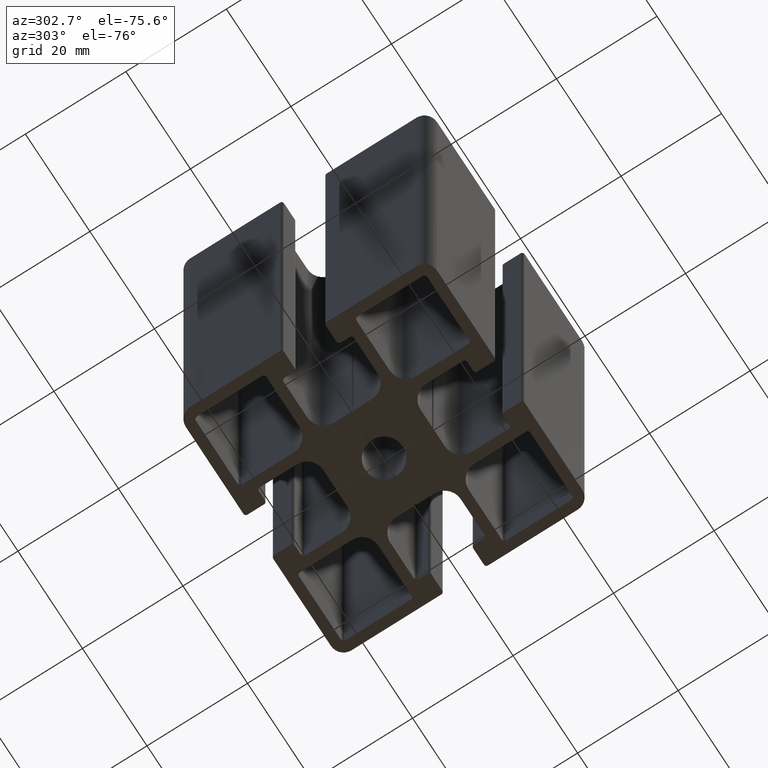
[diagram: clean part render]
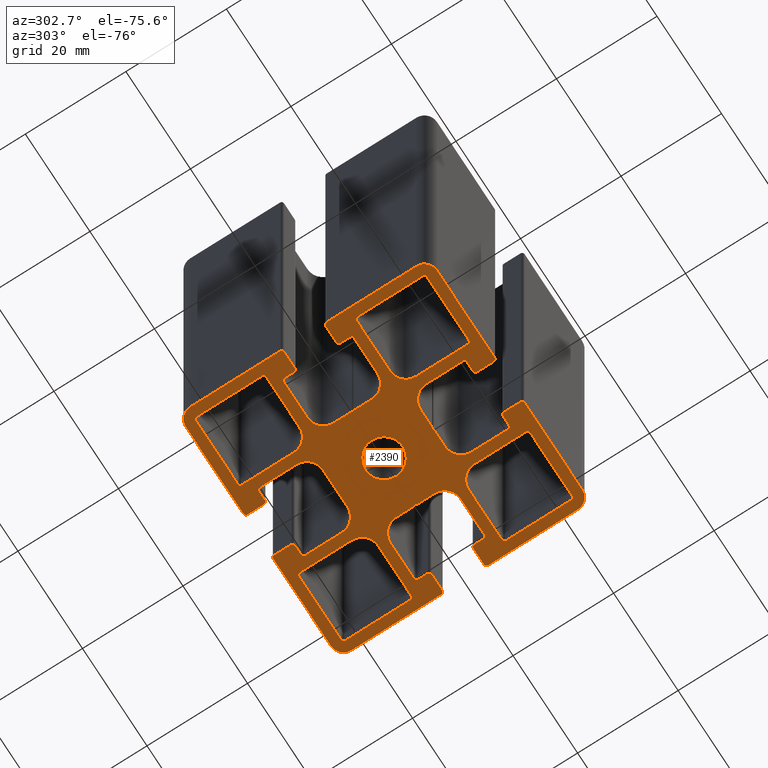
[diagram: same view with one face highlighted and labeled with its STEP entity id]
A machine part, auxiliary view. The second image highlights one B-rep face of the part: STEP entity #2390.
In plain terms, the highlighted planar face has unit normal (0, 0, 1).
Its self-contained STEP definition (entity closure, byte-faithful):
#21=FACE_BOUND('',#336,.T.);
#22=FACE_BOUND('',#337,.T.);
#23=FACE_BOUND('',#338,.T.);
#24=FACE_BOUND('',#339,.T.);
#25=FACE_BOUND('',#340,.T.);
#91=PLANE('',#2617);
#210=FACE_OUTER_BOUND('',#335,.T.);
#335=EDGE_LOOP('',(#2102,#2103,#2104,#2105,#2106,#2107,#2108,#2109,#2110,
#2111,#2112,#2113,#2114,#2115,#2116,#2117,#2118,#2119,#2120,#2121,#2122,
#2123,#2124,#2125,#2126,#2127,#2128,#2129,#2130,#2131,#2132,#2133,#2134,
#2135,#2136,#2137,#2138,#2139,#2140,#2141,#2142,#2143,#2144,#2145,#2146,
#2147,#2148,#2149,#2150,#2151,#2152,#2153,#2154,#2155,#2156,#2157,#2158,
#2159,#2160,#2161,#2162,#2163,#2164,#2165,#2166,#2167,#2168,#2169,#2170,
#2171,#2172,#2173,#2174,#2175,#2176,#2177,#2178,#2179,#2180,#2181,#2182,
#2183,#2184,#2185));
#336=EDGE_LOOP('',(#2186,#2187,#2188,#2189,#2190,#2191,#2192,#2193));
#337=EDGE_LOOP('',(#2194,#2195,#2196,#2197,#2198,#2199,#2200,#2201));
#338=EDGE_LOOP('',(#2202,#2203,#2204,#2205,#2206,#2207,#2208,#2209));
#339=EDGE_LOOP('',(#2210,#2211,#2212,#2213,#2214,#2215,#2216,#2217));
#340=EDGE_LOOP('',(#2218));
#343=LINE('',#3326,#587);
#347=LINE('',#3338,#591);
#351=LINE('',#3350,#595);
#355=LINE('',#3361,#599);
#359=LINE('',#3374,#603);
#363=LINE('',#3386,#607);
#367=LINE('',#3398,#611);
#371=LINE('',#3409,#615);
#375=LINE('',#3422,#619);
#379=LINE('',#3434,#623);
#383=LINE('',#3446,#627);
#387=LINE('',#3457,#631);
#391=LINE('',#3470,#635);
#395=LINE('',#3482,#639);
#399=LINE('',#3494,#643);
#403=LINE('',#3505,#647);
#407=LINE('',#3523,#651);
#411=LINE('',#3535,#655);
#415=LINE('',#3547,#659);
#419=LINE('',#3559,#663);
#422=LINE('',#3565,#666);
#425=LINE('',#3571,#669);
#428=LINE('',#3577,#672);
#432=LINE('',#3589,#676);
#436=LINE('',#3601,#680);
#440=LINE('',#3613,#684);
#444=LINE('',#3625,#688);
#448=LINE('',#3637,#692);
#452=LINE('',#3649,#696);
#456=LINE('',#3661,#700);
#460=LINE('',#3673,#704);
#464=LINE('',#3685,#708);
#467=LINE('',#3691,#711);
#470=LINE('',#3697,#714);
#473=LINE('',#3703,#717);
#477=LINE('',#3715,#721);
#481=LINE('',#3727,#725);
#485=LINE('',#3739,#729);
#489=LINE('',#3751,#733);
#493=LINE('',#3763,#737);
#497=LINE('',#3775,#741);
#501=LINE('',#3787,#745);
#505=LINE('',#3799,#749);
#509=LINE('',#3811,#753);
#512=LINE('',#3817,#756);
#515=LINE('',#3823,#759);
#518=LINE('',#3829,#762);
#522=LINE('',#3841,#766);
#526=LINE('',#3853,#770);
#530=LINE('',#3865,#774);
#534=LINE('',#3877,#778);
#538=LINE('',#3889,#782);
#542=LINE('',#3901,#786);
#546=LINE('',#3913,#790);
#550=LINE('',#3925,#794);
#554=LINE('',#3937,#798);
#557=LINE('',#3943,#801);
#560=LINE('',#3949,#804);
#563=LINE('',#3955,#807);
#567=LINE('',#3967,#811);
#571=LINE('',#3979,#815);
#575=LINE('',#3991,#819);
#579=LINE('',#4003,#823);
#583=LINE('',#4014,#827);
#587=VECTOR('',#2630,10.3);
#591=VECTOR('',#2642,10.3);
#595=VECTOR('',#2654,13.);
#599=VECTOR('',#2666,13.);
#603=VECTOR('',#2678,10.2999999999998);
#607=VECTOR('',#2690,10.3);
#611=VECTOR('',#2702,13.);
#615=VECTOR('',#2714,13.);
#619=VECTOR('',#2726,10.3);
#623=VECTOR('',#2738,12.9999999999999);
#627=VECTOR('',#2750,13.);
#631=VECTOR('',#2762,10.3);
#635=VECTOR('',#2774,10.3);
#639=VECTOR('',#2786,10.3);
#643=VECTOR('',#2798,13.);
#647=VECTOR('',#2810,12.9999999999999);
#651=VECTOR('',#2828,3.30000000000013);
#655=VECTOR('',#2840,1.84999999999998);
#659=VECTOR('',#2852,7.30000000000011);
#663=VECTOR('',#2864,3.60000000000003);
#666=VECTOR('',#2869,0.28284271247467);
#669=VECTOR('',#2874,0.282842712474657);
#672=VECTOR('',#2879,3.60000000000007);
#676=VECTOR('',#2891,7.30000000000018);
#680=VECTOR('',#2903,1.85000000000002);
#684=VECTOR('',#2915,3.30000000000006);
#688=VECTOR('',#2927,17.8500000000001);
#692=VECTOR('',#2939,17.8500000000002);
#696=VECTOR('',#2951,3.29999999999997);
#700=VECTOR('',#2963,1.85000000000002);
#704=VECTOR('',#2975,7.30000000000004);
#708=VECTOR('',#2987,3.60000000000194);
#711=VECTOR('',#2992,0.282842712474644);
#714=VECTOR('',#2997,0.282842712474538);
#717=VECTOR('',#3002,3.60000000000113);
#721=VECTOR('',#3014,7.30000000000004);
#725=VECTOR('',#3026,1.85000000000002);
#729=VECTOR('',#3038,3.29999999999997);
#733=VECTOR('',#3050,17.8500000000001);
#737=VECTOR('',#3062,17.8500000000001);
#741=VECTOR('',#3074,3.30000000000002);
#745=VECTOR('',#3086,1.85000000000002);
#749=VECTOR('',#3098,7.30000000000008);
#753=VECTOR('',#3110,3.60000000000142);
#756=VECTOR('',#3115,0.282842712474563);
#759=VECTOR('',#3120,0.282842712474663);
#762=VECTOR('',#3125,3.59999999999869);
#766=VECTOR('',#3137,7.30000000000008);
#770=VECTOR('',#3149,1.84999999999998);
#774=VECTOR('',#3161,3.30000000000009);
#778=VECTOR('',#3173,17.85);
#782=VECTOR('',#3185,17.8500000000001);
#786=VECTOR('',#3197,3.29999999999997);
#790=VECTOR('',#3209,1.85000000000002);
#794=VECTOR('',#3221,7.30000000000004);
#798=VECTOR('',#3233,3.60000000000334);
#801=VECTOR('',#3238,0.282842712473376);
#804=VECTOR('',#3243,0.282842712474619);
#807=VECTOR('',#3248,3.60000000000156);
#811=VECTOR('',#3260,7.30000000000004);
#815=VECTOR('',#3272,1.85000000000002);
#819=VECTOR('',#3284,3.29999999999997);
#823=VECTOR('',#3296,17.8500000000002);
#827=VECTOR('',#3308,17.85);
#829=CIRCLE('',#2394,0.499999999999972);
#831=CIRCLE('',#2398,3.20000000000007);
#833=CIRCLE('',#2402,0.499999999999972);
#835=CIRCLE('',#2406,0.500000000000043);
#837=CIRCLE('',#2410,0.500000000000007);
#839=CIRCLE('',#2414,3.20000000000004);
#841=CIRCLE('',#2418,0.500000000000007);
#843=CIRCLE('',#2422,0.500000000000043);
#845=CIRCLE('',#2426,3.20000000000004);
#847=CIRCLE('',#2430,0.500000000000007);
#849=CIRCLE('',#2434,0.500000000000043);
#851=CIRCLE('',#2438,0.499999999999972);
#853=CIRCLE('',#2442,0.500000000000043);
#855=CIRCLE('',#2446,3.20000000000007);
#857=CIRCLE('',#2450,0.499999999999972);
#859=CIRCLE('',#2454,0.499999999999972);
#862=CIRCLE('',#2459,3.735);
#863=CIRCLE('',#2461,0.500000000000043);
#865=CIRCLE('',#2465,0.499999999999901);
#867=CIRCLE('',#2469,0.499999999999972);
#869=CIRCLE('',#2473,3.2);
#871=CIRCLE('',#2480,3.19999999999997);
#873=CIRCLE('',#2484,0.499999999999972);
#875=CIRCLE('',#2488,0.499999999999972);
#877=CIRCLE('',#2492,0.500000000000043);
#879=CIRCLE('',#2496,2.49999999999993);
#881=CIRCLE('',#2500,0.499999999999972);
#883=CIRCLE('',#2504,0.499999999999936);
#885=CIRCLE('',#2508,0.499999999999972);
#887=CIRCLE('',#2512,3.20000000000004);
#889=CIRCLE('',#2519,3.20000000000004);
#891=CIRCLE('',#2523,0.499999999999936);
#893=CIRCLE('',#2527,0.499999999999972);
#895=CIRCLE('',#2531,0.499999999999972);
#897=CIRCLE('',#2535,2.49999999999996);
#899=CIRCLE('',#2539,0.500000000000007);
#901=CIRCLE('',#2543,0.499999999999936);
#903=CIRCLE('',#2547,0.499999999999972);
#905=CIRCLE('',#2551,3.1999999999999);
#907=CIRCLE('',#2558,3.19999999999997);
#909=CIRCLE('',#2562,0.499999999999972);
#911=CIRCLE('',#2566,0.499999999999901);
#913=CIRCLE('',#2570,0.500000000000043);
#915=CIRCLE('',#2574,2.49999999999996);
#917=CIRCLE('',#2578,0.499999999999972);
#919=CIRCLE('',#2582,0.499999999999954);
#921=CIRCLE('',#2586,0.499999999999972);
#923=CIRCLE('',#2590,3.19999999999999);
#925=CIRCLE('',#2597,3.19999999999997);
#927=CIRCLE('',#2601,0.499999999999989);
#929=CIRCLE('',#2605,0.499999999999972);
#931=CIRCLE('',#2609,0.499999999999972);
#933=CIRCLE('',#2613,2.49999999999993);
#935=VERTEX_POINT('',#3316);
#936=VERTEX_POINT('',#3317);
#939=VERTEX_POINT('',#3325);
#941=VERTEX_POINT('',#3331);
#943=VERTEX_POINT('',#3337);
#945=VERTEX_POINT('',#3343);
#947=VERTEX_POINT('',#3349);
#949=VERTEX_POINT('',#3355);
#951=VERTEX_POINT('',#3364);
#952=VERTEX_POINT('',#3365);
#955=VERTEX_POINT('',#3373);
#957=VERTEX_POINT('',#3379);
#959=VERTEX_POINT('',#3385);
#961=VERTEX_POINT('',#3391);
#963=VERTEX_POINT('',#3397);
#965=VERTEX_POINT('',#3403);
#967=VERTEX_POINT('',#3412);
#968=VERTEX_POINT('',#3413);
#971=VERTEX_POINT('',#3421);
#973=VERTEX_POINT('',#3427);
#975=VERTEX_POINT('',#3433);
#977=VERTEX_POINT('',#3439);
#979=VERTEX_POINT('',#3445);
#981=VERTEX_POINT('',#3451);
#983=VERTEX_POINT('',#3460);
#984=VERTEX_POINT('',#3461);
#987=VERTEX_POINT('',#3469);
#989=VERTEX_POINT('',#3475);
#991=VERTEX_POINT('',#3481);
#993=VERTEX_POINT('',#3487);
#995=VERTEX_POINT('',#3493);
#997=VERTEX_POINT('',#3499);
#1000=VERTEX_POINT('',#3510);
#1001=VERTEX_POINT('',#3513);
#1002=VERTEX_POINT('',#3514);
#1005=VERTEX_POINT('',#3522);
#1007=VERTEX_POINT('',#3528);
#1009=VERTEX_POINT('',#3534);
#1011=VERTEX_POINT('',#3540);
#1013=VERTEX_POINT('',#3546);
#1015=VERTEX_POINT('',#3552);
#1017=VERTEX_POINT('',#3558);
#1019=VERTEX_POINT('',#3564);
#1021=VERTEX_POINT('',#3570);
#1023=VERTEX_POINT('',#3576);
#1025=VERTEX_POINT('',#3582);
#1027=VERTEX_POINT('',#3588);
#1029=VERTEX_POINT('',#3594);
#1031=VERTEX_POINT('',#3600);
#1033=VERTEX_POINT('',#3606);
#1035=VERTEX_POINT('',#3612);
#1037=VERTEX_POINT('',#3618);
#1039=VERTEX_POINT('',#3624);
#1041=VERTEX_POINT('',#3630);
#1043=VERTEX_POINT('',#3636);
#1045=VERTEX_POINT('',#3642);
#1047=VERTEX_POINT('',#3648);
#1049=VERTEX_POINT('',#3654);
#1051=VERTEX_POINT('',#3660);
#1053=VERTEX_POINT('',#3666);
#1055=VERTEX_POINT('',#3672);
#1057=VERTEX_POINT('',#3678);
#1059=VERTEX_POINT('',#3684);
#1061=VERTEX_POINT('',#3690);
#1063=VERTEX_POINT('',#3696);
#1065=VERTEX_POINT('',#3702);
#1067=VERTEX_POINT('',#3708);
#1069=VERTEX_POINT('',#3714);
#1071=VERTEX_POINT('',#3720);
#1073=VERTEX_POINT('',#3726);
#1075=VERTEX_POINT('',#3732);
#1077=VERTEX_POINT('',#3738);
#1079=VERTEX_POINT('',#3744);
#1081=VERTEX_POINT('',#3750);
#1083=VERTEX_POINT('',#3756);
#1085=VERTEX_POINT('',#3762);
#1087=VERTEX_POINT('',#3768);
#1089=VERTEX_POINT('',#3774);
#1091=VERTEX_POINT('',#3780);
#1093=VERTEX_POINT('',#3786);
#1095=VERTEX_POINT('',#3792);
#1097=VERTEX_POINT('',#3798);
#1099=VERTEX_POINT('',#3804);
#1101=VERTEX_POINT('',#3810);
#1103=VERTEX_POINT('',#3816);
#1105=VERTEX_POINT('',#3822);
#1107=VERTEX_POINT('',#3828);
#1109=VERTEX_POINT('',#3834);
#1111=VERTEX_POINT('',#3840);
#1113=VERTEX_POINT('',#3846);
#1115=VERTEX_POINT('',#3852);
#1117=VERTEX_POINT('',#3858);
#1119=VERTEX_POINT('',#3864);
#1121=VERTEX_POINT('',#3870);
#1123=VERTEX_POINT('',#3876);
#1125=VERTEX_POINT('',#3882);
#1127=VERTEX_POINT('',#3888);
#1129=VERTEX_POINT('',#3894);
#1131=VERTEX_POINT('',#3900);
#1133=VERTEX_POINT('',#3906);
#1135=VERTEX_POINT('',#3912);
#1137=VERTEX_POINT('',#3918);
#1139=VERTEX_POINT('',#3924);
#1141=VERTEX_POINT('',#3930);
#1143=VERTEX_POINT('',#3936);
#1145=VERTEX_POINT('',#3942);
#1147=VERTEX_POINT('',#3948);
#1149=VERTEX_POINT('',#3954);
#1151=VERTEX_POINT('',#3960);
#1153=VERTEX_POINT('',#3966);
#1155=VERTEX_POINT('',#3972);
#1157=VERTEX_POINT('',#3978);
#1159=VERTEX_POINT('',#3984);
#1161=VERTEX_POINT('',#3990);
#1163=VERTEX_POINT('',#3996);
#1165=VERTEX_POINT('',#4002);
#1167=VERTEX_POINT('',#4008);
#1169=EDGE_CURVE('',#935,#936,#829,.T.);
#1173=EDGE_CURVE('',#939,#935,#343,.T.);
#1176=EDGE_CURVE('',#941,#939,#831,.T.);
#1179=EDGE_CURVE('',#943,#941,#347,.T.);
#1182=EDGE_CURVE('',#945,#943,#833,.T.);
#1185=EDGE_CURVE('',#947,#945,#351,.T.);
#1188=EDGE_CURVE('',#949,#947,#835,.T.);
#1191=EDGE_CURVE('',#936,#949,#355,.T.);
#1193=EDGE_CURVE('',#951,#952,#837,.T.);
#1197=EDGE_CURVE('',#955,#951,#359,.T.);
#1200=EDGE_CURVE('',#957,#955,#839,.T.);
#1203=EDGE_CURVE('',#959,#957,#363,.T.);
#1206=EDGE_CURVE('',#961,#959,#841,.T.);
#1209=EDGE_CURVE('',#963,#961,#367,.T.);
#1212=EDGE_CURVE('',#965,#963,#843,.T.);
#1215=EDGE_CURVE('',#952,#965,#371,.T.);
#1217=EDGE_CURVE('',#967,#968,#845,.T.);
#1221=EDGE_CURVE('',#971,#967,#375,.T.);
#1224=EDGE_CURVE('',#973,#971,#847,.T.);
#1227=EDGE_CURVE('',#975,#973,#379,.T.);
#1230=EDGE_CURVE('',#977,#975,#849,.T.);
#1233=EDGE_CURVE('',#979,#977,#383,.T.);
#1236=EDGE_CURVE('',#981,#979,#851,.T.);
#1239=EDGE_CURVE('',#968,#981,#387,.T.);
#1241=EDGE_CURVE('',#983,#984,#853,.T.);
#1245=EDGE_CURVE('',#987,#983,#391,.T.);
#1248=EDGE_CURVE('',#989,#987,#855,.T.);
#1251=EDGE_CURVE('',#991,#989,#395,.T.);
#1254=EDGE_CURVE('',#993,#991,#857,.T.);
#1257=EDGE_CURVE('',#995,#993,#399,.T.);
#1260=EDGE_CURVE('',#997,#995,#859,.T.);
#1263=EDGE_CURVE('',#984,#997,#403,.T.);
#1266=EDGE_CURVE('',#1000,#1000,#862,.T.);
#1267=EDGE_CURVE('',#1001,#1002,#863,.T.);
#1271=EDGE_CURVE('',#1005,#1001,#407,.T.);
#1274=EDGE_CURVE('',#1007,#1005,#865,.T.);
#1277=EDGE_CURVE('',#1009,#1007,#411,.T.);
#1280=EDGE_CURVE('',#1011,#1009,#867,.T.);
#1283=EDGE_CURVE('',#1013,#1011,#415,.T.);
#1286=EDGE_CURVE('',#1015,#1013,#869,.T.);
#1289=EDGE_CURVE('',#1017,#1015,#419,.T.);
#1292=EDGE_CURVE('',#1019,#1017,#422,.T.);
#1295=EDGE_CURVE('',#1021,#1019,#425,.T.);
#1298=EDGE_CURVE('',#1023,#1021,#428,.T.);
#1301=EDGE_CURVE('',#1025,#1023,#871,.T.);
#1304=EDGE_CURVE('',#1027,#1025,#432,.T.);
#1307=EDGE_CURVE('',#1029,#1027,#873,.T.);
#1310=EDGE_CURVE('',#1031,#1029,#436,.T.);
#1313=EDGE_CURVE('',#1033,#1031,#875,.T.);
#1316=EDGE_CURVE('',#1035,#1033,#440,.T.);
#1319=EDGE_CURVE('',#1037,#1035,#877,.T.);
#1322=EDGE_CURVE('',#1039,#1037,#444,.T.);
#1325=EDGE_CURVE('',#1041,#1039,#879,.T.);
#1328=EDGE_CURVE('',#1043,#1041,#448,.T.);
#1331=EDGE_CURVE('',#1045,#1043,#881,.T.);
#1334=EDGE_CURVE('',#1047,#1045,#452,.T.);
#1337=EDGE_CURVE('',#1049,#1047,#883,.T.);
#1340=EDGE_CURVE('',#1051,#1049,#456,.T.);
#1343=EDGE_CURVE('',#1053,#1051,#885,.T.);
#1346=EDGE_CURVE('',#1055,#1053,#460,.T.);
#1349=EDGE_CURVE('',#1057,#1055,#887,.T.);
#1352=EDGE_CURVE('',#1059,#1057,#464,.T.);
#1355=EDGE_CURVE('',#1061,#1059,#467,.T.);
#1358=EDGE_CURVE('',#1063,#1061,#470,.T.);
#1361=EDGE_CURVE('',#1065,#1063,#473,.T.);
#1364=EDGE_CURVE('',#1067,#1065,#889,.T.);
#1367=EDGE_CURVE('',#1069,#1067,#477,.T.);
#1370=EDGE_CURVE('',#1071,#1069,#891,.T.);
#1373=EDGE_CURVE('',#1073,#1071,#481,.T.);
#1376=EDGE_CURVE('',#1075,#1073,#893,.T.);
#1379=EDGE_CURVE('',#1077,#1075,#485,.T.);
#1382=EDGE_CURVE('',#1079,#1077,#895,.T.);
#1385=EDGE_CURVE('',#1081,#1079,#489,.T.);
#1388=EDGE_CURVE('',#1083,#1081,#897,.T.);
#1391=EDGE_CURVE('',#1085,#1083,#493,.T.);
#1394=EDGE_CURVE('',#1087,#1085,#899,.T.);
#1397=EDGE_CURVE('',#1089,#1087,#497,.T.);
#1400=EDGE_CURVE('',#1091,#1089,#901,.T.);
#1403=EDGE_CURVE('',#1093,#1091,#501,.T.);
#1406=EDGE_CURVE('',#1095,#1093,#903,.T.);
#1409=EDGE_CURVE('',#1097,#1095,#505,.T.);
#1412=EDGE_CURVE('',#1099,#1097,#905,.T.);
#1415=EDGE_CURVE('',#1101,#1099,#509,.T.);
#1418=EDGE_CURVE('',#1103,#1101,#512,.T.);
#1421=EDGE_CURVE('',#1105,#1103,#515,.T.);
#1424=EDGE_CURVE('',#1107,#1105,#518,.T.);
#1427=EDGE_CURVE('',#1109,#1107,#907,.T.);
#1430=EDGE_CURVE('',#1111,#1109,#522,.T.);
#1433=EDGE_CURVE('',#1113,#1111,#909,.T.);
#1436=EDGE_CURVE('',#1115,#1113,#526,.T.);
#1439=EDGE_CURVE('',#1117,#1115,#911,.T.);
#1442=EDGE_CURVE('',#1119,#1117,#530,.T.);
#1445=EDGE_CURVE('',#1121,#1119,#913,.T.);
#1448=EDGE_CURVE('',#1123,#1121,#534,.T.);
#1451=EDGE_CURVE('',#1125,#1123,#915,.T.);
#1454=EDGE_CURVE('',#1127,#1125,#538,.T.);
#1457=EDGE_CURVE('',#1129,#1127,#917,.T.);
#1460=EDGE_CURVE('',#1131,#1129,#542,.T.);
#1463=EDGE_CURVE('',#1133,#1131,#919,.T.);
#1466=EDGE_CURVE('',#1135,#1133,#546,.T.);
#1469=EDGE_CURVE('',#1137,#1135,#921,.T.);
#1472=EDGE_CURVE('',#1139,#1137,#550,.T.);
#1475=EDGE_CURVE('',#1141,#1139,#923,.T.);
#1478=EDGE_CURVE('',#1143,#1141,#554,.T.);
#1481=EDGE_CURVE('',#1145,#1143,#557,.T.);
#1484=EDGE_CURVE('',#1147,#1145,#560,.T.);
#1487=EDGE_CURVE('',#1149,#1147,#563,.T.);
#1490=EDGE_CURVE('',#1151,#1149,#925,.T.);
#1493=EDGE_CURVE('',#1153,#1151,#567,.T.);
#1496=EDGE_CURVE('',#1155,#1153,#927,.T.);
#1499=EDGE_CURVE('',#1157,#1155,#571,.T.);
#1502=EDGE_CURVE('',#1159,#1157,#929,.T.);
#1505=EDGE_CURVE('',#1161,#1159,#575,.T.);
#1508=EDGE_CURVE('',#1163,#1161,#931,.T.);
#1511=EDGE_CURVE('',#1165,#1163,#579,.T.);
#1514=EDGE_CURVE('',#1167,#1165,#933,.T.);
#1517=EDGE_CURVE('',#1002,#1167,#583,.T.);
#2102=ORIENTED_EDGE('',*,*,#1517,.F.);
#2103=ORIENTED_EDGE('',*,*,#1267,.F.);
#2104=ORIENTED_EDGE('',*,*,#1271,.F.);
#2105=ORIENTED_EDGE('',*,*,#1274,.F.);
#2106=ORIENTED_EDGE('',*,*,#1277,.F.);
#2107=ORIENTED_EDGE('',*,*,#1280,.F.);
#2108=ORIENTED_EDGE('',*,*,#1283,.F.);
#2109=ORIENTED_EDGE('',*,*,#1286,.F.);
#2110=ORIENTED_EDGE('',*,*,#1289,.F.);
#2111=ORIENTED_EDGE('',*,*,#1292,.F.);
#2112=ORIENTED_EDGE('',*,*,#1295,.F.);
#2113=ORIENTED_EDGE('',*,*,#1298,.F.);
#2114=ORIENTED_EDGE('',*,*,#1301,.F.);
#2115=ORIENTED_EDGE('',*,*,#1304,.F.);
#2116=ORIENTED_EDGE('',*,*,#1307,.F.);
#2117=ORIENTED_EDGE('',*,*,#1310,.F.);
#2118=ORIENTED_EDGE('',*,*,#1313,.F.);
#2119=ORIENTED_EDGE('',*,*,#1316,.F.);
#2120=ORIENTED_EDGE('',*,*,#1319,.F.);
#2121=ORIENTED_EDGE('',*,*,#1322,.F.);
#2122=ORIENTED_EDGE('',*,*,#1325,.F.);
#2123=ORIENTED_EDGE('',*,*,#1328,.F.);
#2124=ORIENTED_EDGE('',*,*,#1331,.F.);
#2125=ORIENTED_EDGE('',*,*,#1334,.F.);
#2126=ORIENTED_EDGE('',*,*,#1337,.F.);
#2127=ORIENTED_EDGE('',*,*,#1340,.F.);
#2128=ORIENTED_EDGE('',*,*,#1343,.F.);
#2129=ORIENTED_EDGE('',*,*,#1346,.F.);
#2130=ORIENTED_EDGE('',*,*,#1349,.F.);
#2131=ORIENTED_EDGE('',*,*,#1352,.F.);
#2132=ORIENTED_EDGE('',*,*,#1355,.F.);
#2133=ORIENTED_EDGE('',*,*,#1358,.F.);
#2134=ORIENTED_EDGE('',*,*,#1361,.F.);
#2135=ORIENTED_EDGE('',*,*,#1364,.F.);
#2136=ORIENTED_EDGE('',*,*,#1367,.F.);
#2137=ORIENTED_EDGE('',*,*,#1370,.F.);
#2138=ORIENTED_EDGE('',*,*,#1373,.F.);
#2139=ORIENTED_EDGE('',*,*,#1376,.F.);
#2140=ORIENTED_EDGE('',*,*,#1379,.F.);
#2141=ORIENTED_EDGE('',*,*,#1382,.F.);
#2142=ORIENTED_EDGE('',*,*,#1385,.F.);
#2143=ORIENTED_EDGE('',*,*,#1388,.F.);
#2144=ORIENTED_EDGE('',*,*,#1391,.F.);
#2145=ORIENTED_EDGE('',*,*,#1394,.F.);
#2146=ORIENTED_EDGE('',*,*,#1397,.F.);
#2147=ORIENTED_EDGE('',*,*,#1400,.F.);
#2148=ORIENTED_EDGE('',*,*,#1403,.F.);
#2149=ORIENTED_EDGE('',*,*,#1406,.F.);
#2150=ORIENTED_EDGE('',*,*,#1409,.F.);
#2151=ORIENTED_EDGE('',*,*,#1412,.F.);
#2152=ORIENTED_EDGE('',*,*,#1415,.F.);
#2153=ORIENTED_EDGE('',*,*,#1418,.F.);
#2154=ORIENTED_EDGE('',*,*,#1421,.F.);
#2155=ORIENTED_EDGE('',*,*,#1424,.F.);
#2156=ORIENTED_EDGE('',*,*,#1427,.F.);
#2157=ORIENTED_EDGE('',*,*,#1430,.F.);
#2158=ORIENTED_EDGE('',*,*,#1433,.F.);
#2159=ORIENTED_EDGE('',*,*,#1436,.F.);
#2160=ORIENTED_EDGE('',*,*,#1439,.F.);
#2161=ORIENTED_EDGE('',*,*,#1442,.F.);
#2162=ORIENTED_EDGE('',*,*,#1445,.F.);
#2163=ORIENTED_EDGE('',*,*,#1448,.F.);
#2164=ORIENTED_EDGE('',*,*,#1451,.F.);
#2165=ORIENTED_EDGE('',*,*,#1454,.F.);
#2166=ORIENTED_EDGE('',*,*,#1457,.F.);
#2167=ORIENTED_EDGE('',*,*,#1460,.F.);
#2168=ORIENTED_EDGE('',*,*,#1463,.F.);
#2169=ORIENTED_EDGE('',*,*,#1466,.F.);
#2170=ORIENTED_EDGE('',*,*,#1469,.F.);
#2171=ORIENTED_EDGE('',*,*,#1472,.F.);
#2172=ORIENTED_EDGE('',*,*,#1475,.F.);
#2173=ORIENTED_EDGE('',*,*,#1478,.F.);
#2174=ORIENTED_EDGE('',*,*,#1481,.F.);
#2175=ORIENTED_EDGE('',*,*,#1484,.F.);
#2176=ORIENTED_EDGE('',*,*,#1487,.F.);
#2177=ORIENTED_EDGE('',*,*,#1490,.F.);
#2178=ORIENTED_EDGE('',*,*,#1493,.F.);
#2179=ORIENTED_EDGE('',*,*,#1496,.F.);
#2180=ORIENTED_EDGE('',*,*,#1499,.F.);
#2181=ORIENTED_EDGE('',*,*,#1502,.F.);
#2182=ORIENTED_EDGE('',*,*,#1505,.F.);
#2183=ORIENTED_EDGE('',*,*,#1508,.F.);
#2184=ORIENTED_EDGE('',*,*,#1511,.F.);
#2185=ORIENTED_EDGE('',*,*,#1514,.F.);
#2186=ORIENTED_EDGE('',*,*,#1169,.T.);
#2187=ORIENTED_EDGE('',*,*,#1191,.T.);
#2188=ORIENTED_EDGE('',*,*,#1188,.T.);
#2189=ORIENTED_EDGE('',*,*,#1185,.T.);
#2190=ORIENTED_EDGE('',*,*,#1182,.T.);
#2191=ORIENTED_EDGE('',*,*,#1179,.T.);
#2192=ORIENTED_EDGE('',*,*,#1176,.T.);
#2193=ORIENTED_EDGE('',*,*,#1173,.T.);
#2194=ORIENTED_EDGE('',*,*,#1193,.T.);
#2195=ORIENTED_EDGE('',*,*,#1215,.T.);
#2196=ORIENTED_EDGE('',*,*,#1212,.T.);
#2197=ORIENTED_EDGE('',*,*,#1209,.T.);
#2198=ORIENTED_EDGE('',*,*,#1206,.T.);
#2199=ORIENTED_EDGE('',*,*,#1203,.T.);
#2200=ORIENTED_EDGE('',*,*,#1200,.T.);
#2201=ORIENTED_EDGE('',*,*,#1197,.T.);
#2202=ORIENTED_EDGE('',*,*,#1217,.T.);
#2203=ORIENTED_EDGE('',*,*,#1239,.T.);
#2204=ORIENTED_EDGE('',*,*,#1236,.T.);
#2205=ORIENTED_EDGE('',*,*,#1233,.T.);
#2206=ORIENTED_EDGE('',*,*,#1230,.T.);
#2207=ORIENTED_EDGE('',*,*,#1227,.T.);
#2208=ORIENTED_EDGE('',*,*,#1224,.T.);
#2209=ORIENTED_EDGE('',*,*,#1221,.T.);
#2210=ORIENTED_EDGE('',*,*,#1241,.T.);
#2211=ORIENTED_EDGE('',*,*,#1263,.T.);
#2212=ORIENTED_EDGE('',*,*,#1260,.T.);
#2213=ORIENTED_EDGE('',*,*,#1257,.T.);
#2214=ORIENTED_EDGE('',*,*,#1254,.T.);
#2215=ORIENTED_EDGE('',*,*,#1251,.T.);
#2216=ORIENTED_EDGE('',*,*,#1248,.T.);
#2217=ORIENTED_EDGE('',*,*,#1245,.T.);
#2218=ORIENTED_EDGE('',*,*,#1266,.T.);
#2390=ADVANCED_FACE('',(#210,#21,#22,#23,#24,#25),#91,.F.);
#2394=AXIS2_PLACEMENT_3D('',#3318,#2622,#2623);
#2398=AXIS2_PLACEMENT_3D('',#3332,#2635,#2636);
#2402=AXIS2_PLACEMENT_3D('',#3344,#2647,#2648);
#2406=AXIS2_PLACEMENT_3D('',#3356,#2659,#2660);
#2410=AXIS2_PLACEMENT_3D('',#3366,#2670,#2671);
#2414=AXIS2_PLACEMENT_3D('',#3380,#2683,#2684);
#2418=AXIS2_PLACEMENT_3D('',#3392,#2695,#2696);
#2422=AXIS2_PLACEMENT_3D('',#3404,#2707,#2708);
#2426=AXIS2_PLACEMENT_3D('',#3414,#2718,#2719);
#2430=AXIS2_PLACEMENT_3D('',#3428,#2731,#2732);
#2434=AXIS2_PLACEMENT_3D('',#3440,#2743,#2744);
#2438=AXIS2_PLACEMENT_3D('',#3452,#2755,#2756);
#2442=AXIS2_PLACEMENT_3D('',#3462,#2766,#2767);
#2446=AXIS2_PLACEMENT_3D('',#3476,#2779,#2780);
#2450=AXIS2_PLACEMENT_3D('',#3488,#2791,#2792);
#2454=AXIS2_PLACEMENT_3D('',#3500,#2803,#2804);
#2459=AXIS2_PLACEMENT_3D('',#3511,#2816,#2817);
#2461=AXIS2_PLACEMENT_3D('',#3515,#2820,#2821);
#2465=AXIS2_PLACEMENT_3D('',#3529,#2833,#2834);
#2469=AXIS2_PLACEMENT_3D('',#3541,#2845,#2846);
#2473=AXIS2_PLACEMENT_3D('',#3553,#2857,#2858);
#2480=AXIS2_PLACEMENT_3D('',#3583,#2884,#2885);
#2484=AXIS2_PLACEMENT_3D('',#3595,#2896,#2897);
#2488=AXIS2_PLACEMENT_3D('',#3607,#2908,#2909);
#2492=AXIS2_PLACEMENT_3D('',#3619,#2920,#2921);
#2496=AXIS2_PLACEMENT_3D('',#3631,#2932,#2933);
#2500=AXIS2_PLACEMENT_3D('',#3643,#2944,#2945);
#2504=AXIS2_PLACEMENT_3D('',#3655,#2956,#2957);
#2508=AXIS2_PLACEMENT_3D('',#3667,#2968,#2969);
#2512=AXIS2_PLACEMENT_3D('',#3679,#2980,#2981);
#2519=AXIS2_PLACEMENT_3D('',#3709,#3007,#3008);
#2523=AXIS2_PLACEMENT_3D('',#3721,#3019,#3020);
#2527=AXIS2_PLACEMENT_3D('',#3733,#3031,#3032);
#2531=AXIS2_PLACEMENT_3D('',#3745,#3043,#3044);
#2535=AXIS2_PLACEMENT_3D('',#3757,#3055,#3056);
#2539=AXIS2_PLACEMENT_3D('',#3769,#3067,#3068);
#2543=AXIS2_PLACEMENT_3D('',#3781,#3079,#3080);
#2547=AXIS2_PLACEMENT_3D('',#3793,#3091,#3092);
#2551=AXIS2_PLACEMENT_3D('',#3805,#3103,#3104);
#2558=AXIS2_PLACEMENT_3D('',#3835,#3130,#3131);
#2562=AXIS2_PLACEMENT_3D('',#3847,#3142,#3143);
#2566=AXIS2_PLACEMENT_3D('',#3859,#3154,#3155);
#2570=AXIS2_PLACEMENT_3D('',#3871,#3166,#3167);
#2574=AXIS2_PLACEMENT_3D('',#3883,#3178,#3179);
#2578=AXIS2_PLACEMENT_3D('',#3895,#3190,#3191);
#2582=AXIS2_PLACEMENT_3D('',#3907,#3202,#3203);
#2586=AXIS2_PLACEMENT_3D('',#3919,#3214,#3215);
#2590=AXIS2_PLACEMENT_3D('',#3931,#3226,#3227);
#2597=AXIS2_PLACEMENT_3D('',#3961,#3253,#3254);
#2601=AXIS2_PLACEMENT_3D('',#3973,#3265,#3266);
#2605=AXIS2_PLACEMENT_3D('',#3985,#3277,#3278);
#2609=AXIS2_PLACEMENT_3D('',#3997,#3289,#3290);
#2613=AXIS2_PLACEMENT_3D('',#4009,#3301,#3302);
#2617=AXIS2_PLACEMENT_3D('',#4017,#3312,#3313);
#2622=DIRECTION('center_axis',(0.,0.,1.));
#2623=DIRECTION('ref_axis',(7.10542735760128E-14,1.,0.));
#2630=DIRECTION('',(1.,-4.31154572669963E-14,0.));
#2635=DIRECTION('center_axis',(0.,0.,1.));
#2636=DIRECTION('ref_axis',(1.,-4.44089209850057E-14,0.));
#2642=DIRECTION('',(-4.05285298309766E-14,-1.,0.));
#2647=DIRECTION('center_axis',(0.,0.,1.));
#2648=DIRECTION('ref_axis',(-7.10542735760128E-14,-1.,0.));
#2654=DIRECTION('',(-1.,4.91914201680069E-14,0.));
#2659=DIRECTION('center_axis',(0.,0.,1.));
#2660=DIRECTION('ref_axis',(-1.,-7.10542735760141E-14,0.));
#2666=DIRECTION('',(4.03096359710056E-14,1.,0.));
#2670=DIRECTION('center_axis',(0.,0.,1.));
#2671=DIRECTION('ref_axis',(1.,0.,0.));
#2678=DIRECTION('',(-9.48540059873942E-14,-1.,0.));
#2683=DIRECTION('center_axis',(0.,0.,1.));
#2684=DIRECTION('ref_axis',(-7.771561172376E-14,-1.,0.));
#2690=DIRECTION('',(-1.,9.31293876967119E-14,0.));
#2695=DIRECTION('center_axis',(0.,0.,1.));
#2696=DIRECTION('ref_axis',(-1.,1.42108547152028E-13,0.));
#2702=DIRECTION('',(9.2917126984013E-14,1.,0.));
#2707=DIRECTION('center_axis',(0.,0.,1.));
#2708=DIRECTION('ref_axis',(-7.1054273576004E-14,1.,0.));
#2714=DIRECTION('',(1.,-9.15506986460128E-14,0.));
#2718=DIRECTION('center_axis',(0.,0.,1.));
#2719=DIRECTION('ref_axis',(0.,1.,0.));
#2726=DIRECTION('',(1.,-2.58692743601979E-15,0.));
#2731=DIRECTION('center_axis',(0.,0.,1.));
#2732=DIRECTION('ref_axis',(1.,0.,0.));
#2738=DIRECTION('',(-1.3664283380002E-15,-1.,0.));
#2743=DIRECTION('center_axis',(0.,0.,1.));
#2744=DIRECTION('ref_axis',(1.42108547152008E-13,-1.,0.));
#2750=DIRECTION('',(-1.,-3.41607084500048E-15,0.));
#2755=DIRECTION('center_axis',(0.,0.,1.));
#2756=DIRECTION('ref_axis',(-1.,1.42108547152028E-13,0.));
#2762=DIRECTION('',(3.44923658135971E-15,1.,0.));
#2766=DIRECTION('center_axis',(0.,0.,1.));
#2767=DIRECTION('ref_axis',(-5.3290705182002E-14,-1.,0.));
#2774=DIRECTION('',(-1.,1.35382535818369E-13,0.));
#2779=DIRECTION('center_axis',(0.,0.,1.));
#2780=DIRECTION('ref_axis',(-1.,1.11022302462513E-13,0.));
#2786=DIRECTION('',(1.34520226673028E-13,1.,0.));
#2791=DIRECTION('center_axis',(0.,0.,1.));
#2792=DIRECTION('ref_axis',(1.42108547152038E-13,1.,0.));
#2798=DIRECTION('',(1.,-1.36642833800019E-13,0.));
#2803=DIRECTION('center_axis',(0.,0.,1.));
#2804=DIRECTION('ref_axis',(1.,-2.13162820728054E-13,0.));
#2810=DIRECTION('',(-1.3390997712402E-13,-1.,0.));
#2816=DIRECTION('center_axis',(0.,0.,1.));
#2817=DIRECTION('ref_axis',(-1.,0.,0.));
#2820=DIRECTION('center_axis',(0.,0.,1.));
#2821=DIRECTION('ref_axis',(1.,0.,0.));
#2828=DIRECTION('',(2.69144975666694E-15,1.,0.));
#2833=DIRECTION('center_axis',(0.,0.,1.));
#2834=DIRECTION('ref_axis',(-2.30926389122079E-13,-1.,0.));
#2840=DIRECTION('',(1.,-3.84077154464924E-14,0.));
#2845=DIRECTION('center_axis',(0.,0.,-1.));
#2846=DIRECTION('ref_axis',(-7.10542735760141E-14,-1.,0.));
#2852=DIRECTION('',(0.,1.,0.));
#2857=DIRECTION('center_axis',(0.,0.,-1.));
#2858=DIRECTION('ref_axis',(1.,0.,0.));
#2864=DIRECTION('',(-1.,-1.72701359386134E-14,0.));
#2869=DIRECTION('',(-0.707106781186563,0.707106781186532,0.));
#2874=DIRECTION('',(-0.707106781186532,-0.707106781186563,0.));
#2879=DIRECTION('',(-1.,1.97372982155579E-14,0.));
#2884=DIRECTION('center_axis',(0.,0.,-1.));
#2885=DIRECTION('ref_axis',(0.,1.,0.));
#2891=DIRECTION('',(-4.86673106684988E-15,-1.,0.));
#2896=DIRECTION('center_axis',(0.,0.,-1.));
#2897=DIRECTION('ref_axis',(-1.,0.,0.));
#2903=DIRECTION('',(1.,3.84077154464914E-14,0.));
#2908=DIRECTION('center_axis',(0.,0.,1.));
#2909=DIRECTION('ref_axis',(-1.,0.,0.));
#2915=DIRECTION('',(2.69144975666699E-15,-1.,0.));
#2920=DIRECTION('center_axis',(0.,0.,1.));
#2921=DIRECTION('ref_axis',(-7.1054273576004E-14,1.,0.));
#2927=DIRECTION('',(-1.,0.,0.));
#2932=DIRECTION('center_axis',(0.,0.,1.));
#2933=DIRECTION('ref_axis',(1.,0.,0.));
#2939=DIRECTION('',(5.97094735932852E-15,1.,0.));
#2944=DIRECTION('center_axis',(0.,0.,1.));
#2945=DIRECTION('ref_axis',(0.,-1.,0.));
#2951=DIRECTION('',(1.,-1.34572487833354E-14,0.));
#2956=DIRECTION('center_axis',(0.,0.,1.));
#2957=DIRECTION('ref_axis',(-1.,-1.77635683940048E-14,0.));
#2963=DIRECTION('',(1.92038577232457E-14,-1.,0.));
#2968=DIRECTION('center_axis',(0.,0.,-1.));
#2969=DIRECTION('ref_axis',(-1.,0.,0.));
#2975=DIRECTION('',(1.,-1.46001932005499E-14,0.));
#2980=DIRECTION('center_axis',(0.,0.,-1.));
#2981=DIRECTION('ref_axis',(0.,-1.,0.));
#2987=DIRECTION('',(1.2829243840106E-13,1.,0.));
#2992=DIRECTION('',(0.707106781186595,0.7071067811865,0.));
#2997=DIRECTION('',(-0.707106781186485,0.70710678118661,0.));
#3002=DIRECTION('',(-1.57898385724417E-13,1.,0.));
#3007=DIRECTION('center_axis',(0.,0.,-1.));
#3008=DIRECTION('ref_axis',(1.,1.38777878078143E-14,0.));
#3014=DIRECTION('',(-1.,1.09501449004125E-14,0.));
#3019=DIRECTION('center_axis',(0.,0.,-1.));
#3020=DIRECTION('ref_axis',(7.10542735759939E-14,1.,0.));
#3026=DIRECTION('',(0.,-1.,0.));
#3031=DIRECTION('center_axis',(0.,0.,1.));
#3032=DIRECTION('ref_axis',(7.10542735760077E-14,1.,0.));
#3038=DIRECTION('',(-1.,1.34572487833354E-14,0.));
#3043=DIRECTION('center_axis',(0.,0.,1.));
#3044=DIRECTION('ref_axis',(1.,0.,0.));
#3050=DIRECTION('',(-7.96126314577137E-15,1.,0.));
#3055=DIRECTION('center_axis',(0.,0.,1.));
#3056=DIRECTION('ref_axis',(-1.4210854715202E-14,-1.,0.));
#3062=DIRECTION('',(1.,0.,0.));
#3067=DIRECTION('center_axis',(0.,0.,1.));
#3068=DIRECTION('ref_axis',(-1.,0.,0.));
#3074=DIRECTION('',(1.88401482966692E-14,-1.,0.));
#3079=DIRECTION('center_axis',(0.,0.,1.));
#3080=DIRECTION('ref_axis',(0.,1.,0.));
#3086=DIRECTION('',(-1.,0.,0.));
#3091=DIRECTION('center_axis',(0.,0.,-1.));
#3092=DIRECTION('ref_axis',(7.10542735760141E-14,1.,0.));
#3098=DIRECTION('',(4.86673106684995E-15,-1.,0.));
#3103=DIRECTION('center_axis',(0.,0.,-1.));
#3104=DIRECTION('ref_axis',(-1.,3.33066907387558E-14,0.));
#3110=DIRECTION('',(1.,-1.18423789293303E-13,0.));
#3115=DIRECTION('',(0.707106781186548,-0.707106781186548,0.));
#3120=DIRECTION('',(0.707106781186799,0.707106781186296,0.));
#3125=DIRECTION('',(1.,1.18423789293393E-13,0.));
#3130=DIRECTION('center_axis',(0.,0.,-1.));
#3131=DIRECTION('ref_axis',(-8.32667268468857E-15,-1.,0.));
#3137=DIRECTION('',(-3.65004830013746E-15,1.,0.));
#3142=DIRECTION('center_axis',(0.,0.,-1.));
#3143=DIRECTION('ref_axis',(1.,-7.10542735760191E-14,0.));
#3149=DIRECTION('',(-1.,0.,0.));
#3154=DIRECTION('center_axis',(0.,0.,1.));
#3155=DIRECTION('ref_axis',(1.,0.,0.));
#3161=DIRECTION('',(-2.69144975666697E-15,1.,0.));
#3166=DIRECTION('center_axis',(0.,0.,1.));
#3167=DIRECTION('ref_axis',(1.42108547152008E-13,-1.,0.));
#3173=DIRECTION('',(1.,0.,0.));
#3178=DIRECTION('center_axis',(0.,0.,1.));
#3179=DIRECTION('ref_axis',(-1.,0.,0.));
#3185=DIRECTION('',(0.,-1.,0.));
#3190=DIRECTION('center_axis',(0.,0.,1.));
#3191=DIRECTION('ref_axis',(0.,1.,0.));
#3197=DIRECTION('',(-1.,5.38289951333415E-15,0.));
#3202=DIRECTION('center_axis',(0.,0.,1.));
#3203=DIRECTION('ref_axis',(1.,0.,0.));
#3209=DIRECTION('',(-2.40048221540571E-14,1.,0.));
#3214=DIRECTION('center_axis',(0.,0.,-1.));
#3215=DIRECTION('ref_axis',(1.,0.,0.));
#3221=DIRECTION('',(-1.,1.33835104338374E-14,0.));
#3226=DIRECTION('center_axis',(0.,0.,-1.));
#3227=DIRECTION('ref_axis',(5.55111512312579E-15,1.,0.));
#3233=DIRECTION('',(-7.4014868308275E-15,-1.,0.));
#3238=DIRECTION('',(-0.707106781189766,-0.707106781183329,0.));
#3243=DIRECTION('',(0.707106781186532,-0.707106781186563,0.));
#3248=DIRECTION('',(2.7138785046381E-14,-1.,0.));
#3253=DIRECTION('center_axis',(0.,0.,-1.));
#3254=DIRECTION('ref_axis',(-1.,0.,0.));
#3260=DIRECTION('',(1.,-4.86673106684998E-15,0.));
#3265=DIRECTION('center_axis',(0.,0.,-1.));
#3266=DIRECTION('ref_axis',(1.77635683939972E-14,-1.,0.));
#3272=DIRECTION('',(2.40048221540571E-14,1.,0.));
#3277=DIRECTION('center_axis',(0.,0.,1.));
#3278=DIRECTION('ref_axis',(-7.1054273576004E-14,-1.,0.));
#3284=DIRECTION('',(1.,-2.15315980533366E-14,0.));
#3289=DIRECTION('center_axis',(0.,0.,1.));
#3290=DIRECTION('ref_axis',(-1.,0.,0.));
#3296=DIRECTION('',(1.49273683983213E-15,-1.,0.));
#3301=DIRECTION('center_axis',(0.,0.,1.));
#3302=DIRECTION('ref_axis',(7.1054273576012E-15,1.,0.));
#3308=DIRECTION('',(-1.,-4.97578946610714E-16,0.));
#3312=DIRECTION('center_axis',(0.,0.,1.));
#3313=DIRECTION('ref_axis',(1.,0.,0.));
#3316=CARTESIAN_POINT('',(22.5,9.00000000000054,0.));
#3317=CARTESIAN_POINT('',(23.0000000000001,9.50000000000052,0.));
#3318=CARTESIAN_POINT('Origin',(22.5000000000001,9.50000000000052,0.));
#3325=CARTESIAN_POINT('',(12.2,9.00000000000098,0.));
#3326=CARTESIAN_POINT('',(6.1000000000002,9.00000000000124,0.));
#3331=CARTESIAN_POINT('',(9.0000000000002,12.2000000000012,0.));
#3332=CARTESIAN_POINT('Origin',(12.2000000000002,12.2000000000011,0.));
#3337=CARTESIAN_POINT('',(9.00000000000061,22.5000000000012,0.));
#3338=CARTESIAN_POINT('',(9.00000000000016,11.2500000000004,0.));
#3343=CARTESIAN_POINT('',(9.50000000000063,23.0000000000012,0.));
#3344=CARTESIAN_POINT('Origin',(9.50000000000059,22.5000000000012,0.));
#3349=CARTESIAN_POINT('',(22.5000000000006,23.0000000000005,0.));
#3350=CARTESIAN_POINT('',(11.2500000000009,23.0000000000011,0.));
#3355=CARTESIAN_POINT('',(23.0000000000006,22.5000000000006,0.));
#3356=CARTESIAN_POINT('Origin',(22.5000000000006,22.5000000000005,0.));
#3361=CARTESIAN_POINT('',(22.9999999999999,4.74999999999981,0.));
#3364=CARTESIAN_POINT('',(8.99999999999748,-22.500000000002,0.));
#3365=CARTESIAN_POINT('',(9.49999999999747,-23.000000000002,0.));
#3366=CARTESIAN_POINT('Origin',(9.49999999999747,-22.500000000002,0.));
#3373=CARTESIAN_POINT('',(8.99999999999845,-12.2000000000022,0.));
#3374=CARTESIAN_POINT('',(8.99999999999903,-6.10000000000153,0.));
#3379=CARTESIAN_POINT('',(12.1999999999987,-9.00000000000219,0.));
#3380=CARTESIAN_POINT('Origin',(12.1999999999985,-12.2000000000022,0.));
#3385=CARTESIAN_POINT('',(22.4999999999988,-9.00000000000315,0.));
#3386=CARTESIAN_POINT('',(11.249999999999,-9.0000000000021,0.));
#3391=CARTESIAN_POINT('',(22.9999999999987,-9.50000000000323,0.));
#3392=CARTESIAN_POINT('Origin',(22.4999999999987,-9.50000000000315,0.));
#3397=CARTESIAN_POINT('',(22.9999999999975,-22.5000000000032,0.));
#3398=CARTESIAN_POINT('',(22.9999999999985,-11.2500000000027,0.));
#3403=CARTESIAN_POINT('',(22.4999999999975,-23.0000000000032,0.));
#3404=CARTESIAN_POINT('Origin',(22.4999999999974,-22.5000000000031,0.));
#3409=CARTESIAN_POINT('',(4.74999999999768,-23.0000000000015,0.));
#3412=CARTESIAN_POINT('',(-12.2000000000001,9.00000000000155,0.));
#3413=CARTESIAN_POINT('',(-9.00000000000007,12.2000000000016,0.));
#3414=CARTESIAN_POINT('Origin',(-12.2000000000001,12.2000000000016,0.));
#3421=CARTESIAN_POINT('',(-22.5,9.00000000000158,0.));
#3422=CARTESIAN_POINT('',(-11.25,9.00000000000155,0.));
#3427=CARTESIAN_POINT('',(-23.,9.50000000000158,0.));
#3428=CARTESIAN_POINT('Origin',(-22.5,9.50000000000158,0.));
#3433=CARTESIAN_POINT('',(-23.,22.5000000000015,0.));
#3434=CARTESIAN_POINT('',(-23.,11.2500000000008,0.));
#3439=CARTESIAN_POINT('',(-22.5,23.0000000000016,0.));
#3440=CARTESIAN_POINT('Origin',(-22.5,22.5000000000015,0.));
#3445=CARTESIAN_POINT('',(-9.50000000000004,23.0000000000016,0.));
#3446=CARTESIAN_POINT('',(-4.75000000000006,23.0000000000016,0.));
#3451=CARTESIAN_POINT('',(-9.00000000000003,22.5000000000016,0.));
#3452=CARTESIAN_POINT('Origin',(-9.5,22.5000000000016,0.));
#3457=CARTESIAN_POINT('',(-9.00000000000009,6.1000000000008,0.));
#3460=CARTESIAN_POINT('',(-22.5000000000013,-8.99999999999802,0.));
#3461=CARTESIAN_POINT('',(-23.0000000000013,-9.49999999999807,0.));
#3462=CARTESIAN_POINT('Origin',(-22.5000000000013,-9.49999999999807,0.));
#3469=CARTESIAN_POINT('',(-12.2000000000013,-8.99999999999942,0.));
#3470=CARTESIAN_POINT('',(-6.10000000000126,-9.00000000000024,0.));
#3475=CARTESIAN_POINT('',(-9.00000000000174,-12.1999999999998,0.));
#3476=CARTESIAN_POINT('Origin',(-12.2000000000018,-12.1999999999995,0.));
#3481=CARTESIAN_POINT('',(-9.00000000000312,-22.4999999999999,0.));
#3482=CARTESIAN_POINT('',(-9.00000000000161,-11.2499999999993,0.));
#3487=CARTESIAN_POINT('',(-9.50000000000316,-22.9999999999998,0.));
#3488=CARTESIAN_POINT('Origin',(-9.50000000000309,-22.4999999999999,0.));
#3493=CARTESIAN_POINT('',(-22.5000000000032,-22.9999999999981,0.));
#3494=CARTESIAN_POINT('',(-11.2500000000032,-22.9999999999996,0.));
#3499=CARTESIAN_POINT('',(-23.0000000000031,-22.499999999998,0.));
#3500=CARTESIAN_POINT('Origin',(-22.5000000000031,-22.4999999999981,0.));
#3505=CARTESIAN_POINT('',(-23.0000000000007,-4.74999999999749,0.));
#3510=CARTESIAN_POINT('',(3.735,4.57405579481536E-16,0.));
#3511=CARTESIAN_POINT('Origin',(0.,0.,0.));
#3513=CARTESIAN_POINT('',(-4.15000000000006,24.5000000000015,0.));
#3514=CARTESIAN_POINT('',(-4.65000000000008,25.0000000000016,0.));
#3515=CARTESIAN_POINT('Origin',(-4.65000000000015,24.5000000000015,0.));
#3522=CARTESIAN_POINT('',(-4.15000000000007,21.2000000000014,0.));
#3523=CARTESIAN_POINT('',(-4.15000000000007,21.2000000000014,0.));
#3528=CARTESIAN_POINT('',(-4.65000000000009,20.7000000000015,0.));
#3529=CARTESIAN_POINT('Origin',(-4.64999999999997,21.2000000000014,0.));
#3534=CARTESIAN_POINT('',(-6.50000000000007,20.7000000000016,0.));
#3535=CARTESIAN_POINT('',(-6.50000000000007,20.7000000000016,0.));
#3540=CARTESIAN_POINT('',(-7.00000000000004,20.2000000000015,0.));
#3541=CARTESIAN_POINT('Origin',(-6.5000000000001,20.2000000000016,0.));
#3546=CARTESIAN_POINT('',(-7.00000000000004,12.9000000000014,0.));
#3547=CARTESIAN_POINT('',(-7.00000000000004,12.9000000000014,0.));
#3552=CARTESIAN_POINT('',(-3.80000000000007,9.70000000000141,0.));
#3553=CARTESIAN_POINT('Origin',(-3.80000000000003,12.9000000000014,0.));
#3558=CARTESIAN_POINT('',(-0.20000000000004,9.70000000000147,0.));
#3559=CARTESIAN_POINT('',(-0.20000000000004,9.70000000000147,0.));
#3564=CARTESIAN_POINT('',(0.,9.50000000000144,0.));
#3565=CARTESIAN_POINT('',(0.,9.50000000000144,0.));
#3570=CARTESIAN_POINT('',(0.200000000000022,9.70000000000147,0.));
#3571=CARTESIAN_POINT('',(0.200000000000022,9.70000000000147,0.));
#3576=CARTESIAN_POINT('',(3.8000000000001,9.7000000000014,0.));
#3577=CARTESIAN_POINT('',(3.8000000000001,9.7000000000014,0.));
#3582=CARTESIAN_POINT('',(7.00000000000006,12.9000000000014,0.));
#3583=CARTESIAN_POINT('Origin',(3.8000000000001,12.9000000000014,0.));
#3588=CARTESIAN_POINT('',(7.00000000000009,20.2000000000016,0.));
#3589=CARTESIAN_POINT('',(7.00000000000009,20.2000000000016,0.));
#3594=CARTESIAN_POINT('',(6.50000000000008,20.7000000000016,0.));
#3595=CARTESIAN_POINT('Origin',(6.50000000000012,20.2000000000016,0.));
#3600=CARTESIAN_POINT('',(4.65000000000006,20.7000000000015,0.));
#3601=CARTESIAN_POINT('',(4.65000000000006,20.7000000000015,0.));
#3606=CARTESIAN_POINT('',(4.1500000000001,21.2000000000015,0.));
#3607=CARTESIAN_POINT('Origin',(4.65000000000006,21.2000000000015,0.));
#3612=CARTESIAN_POINT('',(4.15000000000009,24.5000000000015,0.));
#3613=CARTESIAN_POINT('',(4.15000000000009,24.5000000000015,0.));
#3618=CARTESIAN_POINT('',(4.6500000000001,25.0000000000016,0.));
#3619=CARTESIAN_POINT('Origin',(4.65000000000013,24.5000000000015,0.));
#3624=CARTESIAN_POINT('',(22.5000000000002,25.0000000000016,0.));
#3625=CARTESIAN_POINT('',(22.5000000000002,25.0000000000016,0.));
#3630=CARTESIAN_POINT('',(25.0000000000001,22.5000000000016,0.));
#3631=CARTESIAN_POINT('Origin',(22.5000000000002,22.5000000000016,0.));
#3636=CARTESIAN_POINT('',(25.,4.65000000000146,0.));
#3637=CARTESIAN_POINT('',(25.,4.65000000000146,0.));
#3642=CARTESIAN_POINT('',(24.5000000000001,4.15000000000148,0.));
#3643=CARTESIAN_POINT('Origin',(24.5000000000001,4.65000000000146,0.));
#3648=CARTESIAN_POINT('',(21.2000000000001,4.15000000000153,0.));
#3649=CARTESIAN_POINT('',(21.2000000000001,4.15000000000153,0.));
#3654=CARTESIAN_POINT('',(20.7000000000001,4.65000000000146,0.));
#3655=CARTESIAN_POINT('Origin',(21.2000000000001,4.65000000000146,0.));
#3660=CARTESIAN_POINT('',(20.7000000000001,6.50000000000148,0.));
#3661=CARTESIAN_POINT('',(20.7000000000001,6.50000000000148,0.));
#3666=CARTESIAN_POINT('',(20.2000000000001,7.00000000000145,0.));
#3667=CARTESIAN_POINT('Origin',(20.2000000000001,6.50000000000148,0.));
#3672=CARTESIAN_POINT('',(12.9000000000001,7.00000000000156,0.));
#3673=CARTESIAN_POINT('',(12.9000000000001,7.00000000000156,0.));
#3678=CARTESIAN_POINT('',(9.70000000000002,3.80000000000152,0.));
#3679=CARTESIAN_POINT('Origin',(12.9000000000001,3.80000000000148,0.));
#3684=CARTESIAN_POINT('',(9.69999999999956,0.199999999999578,0.));
#3685=CARTESIAN_POINT('',(9.69999999999956,0.199999999999578,0.));
#3690=CARTESIAN_POINT('',(9.49999999999953,-4.2632564145606E-13,0.));
#3691=CARTESIAN_POINT('',(9.49999999999953,-4.2632564145606E-13,0.));
#3696=CARTESIAN_POINT('',(9.69999999999945,-0.200000000000387,0.));
#3697=CARTESIAN_POINT('',(9.69999999999945,-0.200000000000387,0.));
#3702=CARTESIAN_POINT('',(9.70000000000002,-3.80000000000152,0.));
#3703=CARTESIAN_POINT('',(9.70000000000002,-3.80000000000152,0.));
#3708=CARTESIAN_POINT('',(12.9000000000001,-7.00000000000151,0.));
#3709=CARTESIAN_POINT('Origin',(12.9000000000001,-3.80000000000147,0.));
#3714=CARTESIAN_POINT('',(20.2000000000001,-7.00000000000159,0.));
#3715=CARTESIAN_POINT('',(20.2000000000001,-7.00000000000159,0.));
#3720=CARTESIAN_POINT('',(20.7000000000001,-6.50000000000148,0.));
#3721=CARTESIAN_POINT('Origin',(20.2000000000001,-6.50000000000148,0.));
#3726=CARTESIAN_POINT('',(20.7000000000001,-4.65000000000146,0.));
#3727=CARTESIAN_POINT('',(20.7000000000001,-4.65000000000146,0.));
#3732=CARTESIAN_POINT('',(21.2000000000001,-4.15000000000144,0.));
#3733=CARTESIAN_POINT('Origin',(21.2000000000001,-4.65000000000146,0.));
#3738=CARTESIAN_POINT('',(24.5000000000001,-4.15000000000148,0.));
#3739=CARTESIAN_POINT('',(24.5000000000001,-4.15000000000148,0.));
#3744=CARTESIAN_POINT('',(25.,-4.65000000000146,0.));
#3745=CARTESIAN_POINT('Origin',(24.5000000000001,-4.65000000000146,0.));
#3750=CARTESIAN_POINT('',(25.0000000000002,-22.5000000000016,0.));
#3751=CARTESIAN_POINT('',(25.0000000000002,-22.5000000000016,0.));
#3756=CARTESIAN_POINT('',(22.5000000000002,-25.0000000000016,0.));
#3757=CARTESIAN_POINT('Origin',(22.5000000000002,-22.5000000000016,0.));
#3762=CARTESIAN_POINT('',(4.6500000000001,-25.0000000000016,0.));
#3763=CARTESIAN_POINT('',(4.6500000000001,-25.0000000000016,0.));
#3768=CARTESIAN_POINT('',(4.15000000000012,-24.5000000000015,0.));
#3769=CARTESIAN_POINT('Origin',(4.65000000000013,-24.5000000000015,0.));
#3774=CARTESIAN_POINT('',(4.15000000000006,-21.2000000000015,0.));
#3775=CARTESIAN_POINT('',(4.15000000000006,-21.2000000000015,0.));
#3780=CARTESIAN_POINT('',(4.65000000000006,-20.7000000000015,0.));
#3781=CARTESIAN_POINT('Origin',(4.65000000000006,-21.2000000000015,0.));
#3786=CARTESIAN_POINT('',(6.50000000000008,-20.7000000000015,0.));
#3787=CARTESIAN_POINT('',(6.50000000000008,-20.7000000000015,0.));
#3792=CARTESIAN_POINT('',(7.00000000000009,-20.2000000000016,0.));
#3793=CARTESIAN_POINT('Origin',(6.50000000000012,-20.2000000000016,0.));
#3798=CARTESIAN_POINT('',(7.00000000000006,-12.9000000000015,0.));
#3799=CARTESIAN_POINT('',(7.00000000000006,-12.9000000000015,0.));
#3804=CARTESIAN_POINT('',(3.8000000000001,-9.70000000000141,0.));
#3805=CARTESIAN_POINT('Origin',(3.80000000000016,-12.9000000000014,0.));
#3810=CARTESIAN_POINT('',(0.199999999998681,-9.70000000000098,0.));
#3811=CARTESIAN_POINT('',(0.199999999998681,-9.70000000000098,0.));
#3816=CARTESIAN_POINT('',(-1.27897692436818E-12,-9.50000000000102,0.));
#3817=CARTESIAN_POINT('',(-1.27897692436818E-12,-9.50000000000102,0.));
#3822=CARTESIAN_POINT('',(-0.200000000001381,-9.70000000000098,0.));
#3823=CARTESIAN_POINT('',(-0.200000000001381,-9.70000000000098,0.));
#3828=CARTESIAN_POINT('',(-3.80000000000007,-9.70000000000141,0.));
#3829=CARTESIAN_POINT('',(-3.80000000000007,-9.70000000000141,0.));
#3834=CARTESIAN_POINT('',(-7.00000000000006,-12.9000000000014,0.));
#3835=CARTESIAN_POINT('Origin',(-3.8000000000001,-12.9000000000014,0.));
#3840=CARTESIAN_POINT('',(-7.00000000000004,-20.2000000000015,0.));
#3841=CARTESIAN_POINT('',(-7.00000000000004,-20.2000000000015,0.));
#3846=CARTESIAN_POINT('',(-6.50000000000007,-20.7000000000015,0.));
#3847=CARTESIAN_POINT('Origin',(-6.5000000000001,-20.2000000000016,0.));
#3852=CARTESIAN_POINT('',(-4.65000000000009,-20.7000000000015,0.));
#3853=CARTESIAN_POINT('',(-4.65000000000009,-20.7000000000015,0.));
#3858=CARTESIAN_POINT('',(-4.15000000000007,-21.2000000000014,0.));
#3859=CARTESIAN_POINT('Origin',(-4.64999999999997,-21.2000000000014,0.));
#3864=CARTESIAN_POINT('',(-4.15000000000006,-24.5000000000015,0.));
#3865=CARTESIAN_POINT('',(-4.15000000000006,-24.5000000000015,0.));
#3870=CARTESIAN_POINT('',(-4.65000000000008,-25.0000000000016,0.));
#3871=CARTESIAN_POINT('Origin',(-4.65000000000015,-24.5000000000015,0.));
#3876=CARTESIAN_POINT('',(-22.5000000000001,-25.0000000000016,0.));
#3877=CARTESIAN_POINT('',(-22.5000000000001,-25.0000000000016,0.));
#3882=CARTESIAN_POINT('',(-25.,-22.5000000000016,0.));
#3883=CARTESIAN_POINT('Origin',(-22.5000000000001,-22.5000000000016,0.));
#3888=CARTESIAN_POINT('',(-25.,-4.65000000000146,0.));
#3889=CARTESIAN_POINT('',(-25.,-4.65000000000146,0.));
#3894=CARTESIAN_POINT('',(-24.5000000000001,-4.15000000000148,0.));
#3895=CARTESIAN_POINT('Origin',(-24.5000000000001,-4.65000000000146,0.));
#3900=CARTESIAN_POINT('',(-21.2000000000001,-4.1500000000015,0.));
#3901=CARTESIAN_POINT('',(-21.2000000000001,-4.1500000000015,0.));
#3906=CARTESIAN_POINT('',(-20.7000000000001,-4.65000000000146,0.));
#3907=CARTESIAN_POINT('Origin',(-21.2000000000001,-4.65000000000146,0.));
#3912=CARTESIAN_POINT('',(-20.7000000000001,-6.50000000000148,0.));
#3913=CARTESIAN_POINT('',(-20.7000000000001,-6.50000000000148,0.));
#3918=CARTESIAN_POINT('',(-20.2000000000001,-7.00000000000145,0.));
#3919=CARTESIAN_POINT('Origin',(-20.2000000000001,-6.50000000000148,0.));
#3924=CARTESIAN_POINT('',(-12.9,-7.00000000000155,0.));
#3925=CARTESIAN_POINT('',(-12.9,-7.00000000000155,0.));
#3930=CARTESIAN_POINT('',(-9.70000000000002,-3.80000000000155,0.));
#3931=CARTESIAN_POINT('Origin',(-12.9,-3.80000000000155,0.));
#3936=CARTESIAN_POINT('',(-9.7,-0.199999999998211,0.));
#3937=CARTESIAN_POINT('',(-9.7,-0.199999999998211,0.));
#3942=CARTESIAN_POINT('',(-9.49999999999997,0.,0.));
#3943=CARTESIAN_POINT('',(-9.49999999999997,0.,0.));
#3948=CARTESIAN_POINT('',(-9.69999999999996,0.200000000000005,0.));
#3949=CARTESIAN_POINT('',(-9.69999999999996,0.200000000000005,0.));
#3954=CARTESIAN_POINT('',(-9.70000000000006,3.80000000000156,0.));
#3955=CARTESIAN_POINT('',(-9.70000000000006,3.80000000000156,0.));
#3960=CARTESIAN_POINT('',(-12.9,7.00000000000156,0.));
#3961=CARTESIAN_POINT('Origin',(-12.9,3.80000000000156,0.));
#3966=CARTESIAN_POINT('',(-20.2000000000001,7.00000000000159,0.));
#3967=CARTESIAN_POINT('',(-20.2000000000001,7.00000000000159,0.));
#3972=CARTESIAN_POINT('',(-20.7000000000001,6.50000000000148,0.));
#3973=CARTESIAN_POINT('Origin',(-20.2000000000001,6.50000000000144,0.));
#3978=CARTESIAN_POINT('',(-20.7000000000001,4.65000000000146,0.));
#3979=CARTESIAN_POINT('',(-20.7000000000001,4.65000000000146,0.));
#3984=CARTESIAN_POINT('',(-21.2000000000001,4.15000000000141,0.));
#3985=CARTESIAN_POINT('Origin',(-21.2000000000001,4.65000000000146,0.));
#3990=CARTESIAN_POINT('',(-24.5000000000001,4.15000000000148,0.));
#3991=CARTESIAN_POINT('',(-24.5000000000001,4.15000000000148,0.));
#3996=CARTESIAN_POINT('',(-25.,4.65000000000146,0.));
#3997=CARTESIAN_POINT('Origin',(-24.5000000000001,4.65000000000146,0.));
#4002=CARTESIAN_POINT('',(-25.0000000000001,22.5000000000016,0.));
#4003=CARTESIAN_POINT('',(-25.0000000000001,22.5000000000016,0.));
#4008=CARTESIAN_POINT('',(-22.5000000000001,25.0000000000016,0.));
#4009=CARTESIAN_POINT('Origin',(-22.5000000000001,22.5000000000016,0.));
#4014=CARTESIAN_POINT('',(-4.65000000000008,25.0000000000016,0.));
#4017=CARTESIAN_POINT('Origin',(-6.23792636721484E-16,2.15974382273494E-14,
0.));